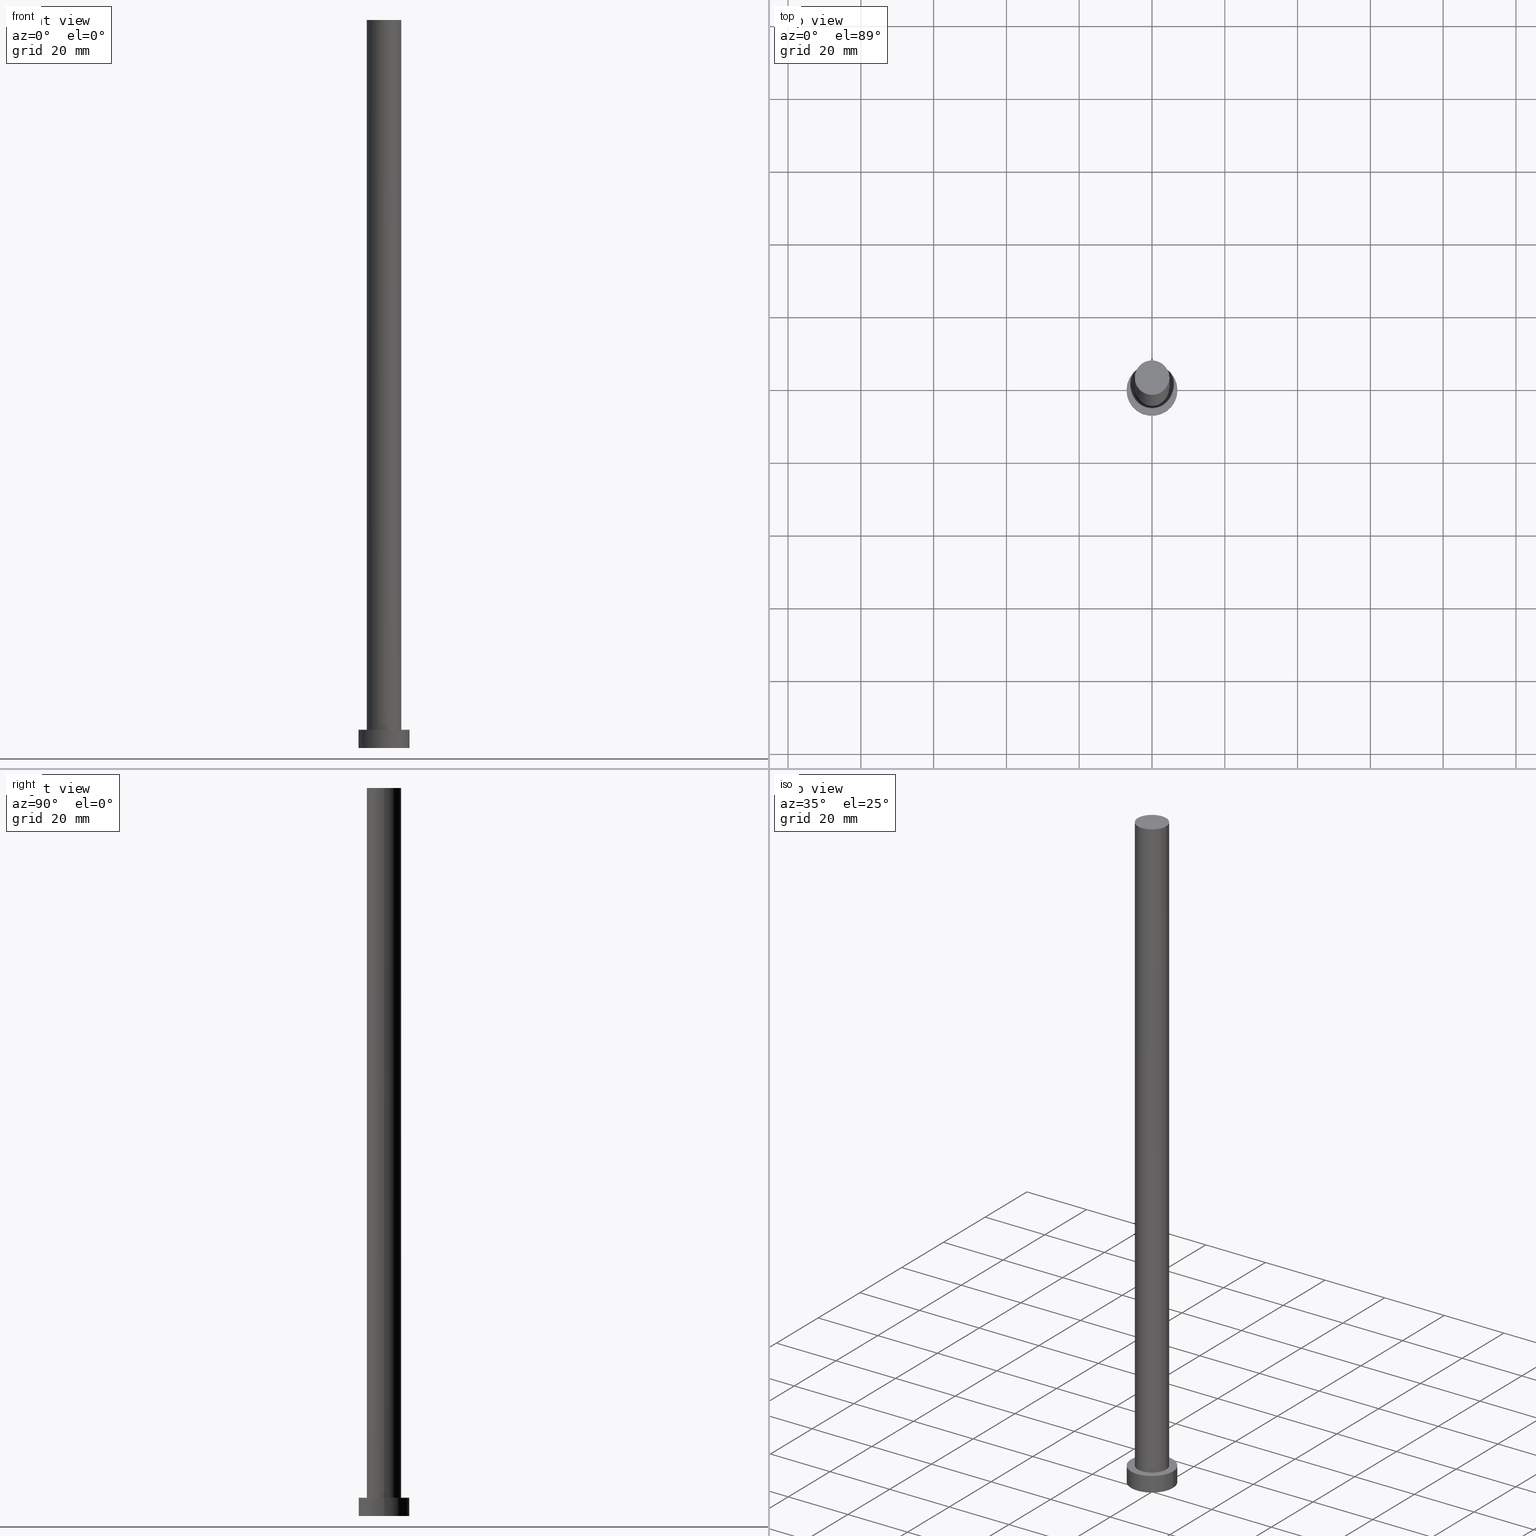
[diagram: canonical four-view strip — front | top / right | iso, engineering-drawing reading convention]
A machine part, canonical four-view strip (front | top / right | iso — engineering-drawing reading convention). The complete STEP part file that produces these views, byte-faithful:
ISO-10303-21;
HEADER;
FILE_DESCRIPTION (( 'STEP AP203' ),
    '1' );
FILE_NAME ('6ca9.STEP',
    '2026-02-06T12:37:42',
    ( '' ),
    ( '' ),
    'SwSTEP 2.0',
    'SolidWorks 2019',
    '' );
FILE_SCHEMA (( 'CONFIG_CONTROL_DESIGN' ));
ENDSEC;

DATA;
#1 = FACE_OUTER_BOUND ( 'NONE', #89, .T. ) ;
#2 = PERSON_AND_ORGANIZATION_ROLE ( 'design_supplier' ) ;
#3 = DIRECTION ( 'NONE',  ( -1.000000000000000000, 0.000000000000000000, 0.000000000000000000 ) ) ;
#4 = PERSON_AND_ORGANIZATION_ROLE ( 'creator' ) ;
#5 = PERSON_AND_ORGANIZATION ( #108, #65 ) ;
#6 = DIRECTION ( 'NONE',  ( -1.000000000000000000, 0.000000000000000000, 0.000000000000000000 ) ) ;
#7 = CARTESIAN_POINT ( 'NONE',  ( 0.000000000000000000, 0.000000000000000000, 5.000000000000000000 ) ) ;
#8 = APPROVAL_STATUS ( 'not_yet_approved' ) ;
#9 = AXIS2_PLACEMENT_3D ( 'NONE', #255, #77, #186 ) ;
#10 = CARTESIAN_POINT ( 'NONE',  ( 4.750000000000000888, 5.817072295949928412E-16, 200.0000000000000000 ) ) ;
#11 = DATE_AND_TIME ( #180, #14 ) ;
#12 = DESIGN_CONTEXT ( 'detailed design', #203, 'design' ) ;
#13 = ORIENTED_EDGE ( 'NONE', *, *, #185, .T. ) ;
#14 = LOCAL_TIME ( 13, 37, 42.00000000000000000, #100 ) ;
#15 = ORIENTED_EDGE ( 'NONE', *, *, #70, .T. ) ;
#16 = EDGE_CURVE ( 'NONE', #254, #148, #161, .T. ) ;
#17 = EDGE_LOOP ( 'NONE', ( #69, #90 ) ) ;
#18 = CARTESIAN_POINT ( 'NONE',  ( 0.000000000000000000, 0.000000000000000000, 200.0000000000000000 ) ) ;
#19 = ORIENTED_EDGE ( 'NONE', *, *, #230, .T. ) ;
#20 = DIRECTION ( 'NONE',  ( 1.000000000000000000, 0.000000000000000000, 0.000000000000000000 ) ) ;
#21 = DIRECTION ( 'NONE',  ( 1.000000000000000000, 0.000000000000000000, 0.000000000000000000 ) ) ;
#22 = COORDINATED_UNIVERSAL_TIME_OFFSET ( 1, 0, .AHEAD. ) ;
#23 = VECTOR ( 'NONE', #39, 1000.000000000000000 ) ;
#24 = DIRECTION ( 'NONE',  ( -0.000000000000000000, -0.000000000000000000, -1.000000000000000000 ) ) ;
#25 = PLANE ( 'NONE',  #253 ) ;
#26 = PLANE ( 'NONE',  #102 ) ;
#27 = APPLICATION_CONTEXT ( 'configuration controlled 3d designs of mechanical parts and assemblies' ) ;
#28 = CALENDAR_DATE ( 2026, 6, 2 ) ;
#29 = APPROVAL_PERSON_ORGANIZATION ( #226, #182, #218 ) ;
#30 = APPROVAL_ROLE ( '' ) ;
#31 = EDGE_CURVE ( 'NONE', #148, #254, #59, .T. ) ;
#32 = DIRECTION ( 'NONE',  ( -0.000000000000000000, -0.000000000000000000, -1.000000000000000000 ) ) ;
#33 =( GEOMETRIC_REPRESENTATION_CONTEXT ( 3 ) GLOBAL_UNCERTAINTY_ASSIGNED_CONTEXT ( ( #104 ) ) GLOBAL_UNIT_ASSIGNED_CONTEXT ( ( #85, #222, #242 ) ) REPRESENTATION_CONTEXT ( 'NONE', 'WORKASPACE' ) );
#34 = VERTEX_POINT ( 'NONE', #209 ) ;
#35 = DIRECTION ( 'NONE',  ( 0.000000000000000000, 0.000000000000000000, 1.000000000000000000 ) ) ;
#36 = PLANE ( 'NONE',  #245 ) ;
#37 = ORIENTED_EDGE ( 'NONE', *, *, #16, .F. ) ;
#38 = APPROVAL_PERSON_ORGANIZATION ( #200, #205, #30 ) ;
#39 = DIRECTION ( 'NONE',  ( -0.000000000000000000, -0.000000000000000000, -1.000000000000000000 ) ) ;
#40 = SECURITY_CLASSIFICATION_LEVEL ( 'unclassified' ) ;
#41 = DIRECTION ( 'NONE',  ( 1.000000000000000000, 0.000000000000000000, -0.000000000000000000 ) ) ;
#42 = PERSON_AND_ORGANIZATION ( #108, #65 ) ;
#43 = DIRECTION ( 'NONE',  ( 0.000000000000000000, 0.000000000000000000, 1.000000000000000000 ) ) ;
#44 = DATE_TIME_ROLE ( 'creation_date' ) ;
#45 = CALENDAR_DATE ( 2026, 6, 2 ) ;
#46 = CIRCLE ( 'NONE', #201, 7.000000000000000000 ) ;
#47 = DIRECTION ( 'NONE',  ( 1.000000000000000000, 0.000000000000000000, 0.000000000000000000 ) ) ;
#48 = CARTESIAN_POINT ( 'NONE',  ( 4.750000000000000888, 5.817072295949928412E-16, 5.000000000000000000 ) ) ;
#49 = PERSON_AND_ORGANIZATION_ROLE ( 'design_owner' ) ;
#50 = APPLICATION_PROTOCOL_DEFINITION ( 'international standard', 'config_control_design', 1994, #27 ) ;
#51 = DATE_AND_TIME ( #28, #141 ) ;
#52 = ORIENTED_EDGE ( 'NONE', *, *, #16, .T. ) ;
#53 = EDGE_CURVE ( 'NONE', #140, #57, #171, .T. ) ;
#54 = AXIS2_PLACEMENT_3D ( 'NONE', #134, #43, #97 ) ;
#55 = MANIFOLD_SOLID_BREP ( 'P�idat vysunut�m3', #93 ) ;
#56 = DIRECTION ( 'NONE',  ( -0.000000000000000000, -0.000000000000000000, -1.000000000000000000 ) ) ;
#57 = VERTEX_POINT ( 'NONE', #128 ) ;
#58 = ORIENTED_EDGE ( 'NONE', *, *, #164, .F. ) ;
#59 = CIRCLE ( 'NONE', #231, 7.000000000000000000 ) ;
#60 = CARTESIAN_POINT ( 'NONE',  ( 0.000000000000000000, 0.000000000000000000, 200.0000000000000000 ) ) ;
#61 = DIRECTION ( 'NONE',  ( 1.000000000000000000, 0.000000000000000000, 0.000000000000000000 ) ) ;
#62 = ADVANCED_FACE ( 'NONE', ( #72 ), #36, .T. ) ;
#63 = CARTESIAN_POINT ( 'NONE',  ( 0.000000000000000000, 0.000000000000000000, 5.000000000000000000 ) ) ;
#64 = PERSON_AND_ORGANIZATION_ROLE ( 'creator' ) ;
#65 = ORGANIZATION ( 'NEUR�EN�', 'NEUR�EN�', '' ) ;
#66 = COORDINATED_UNIVERSAL_TIME_OFFSET ( 1, 0, .AHEAD. ) ;
#67 = APPROVAL_PERSON_ORGANIZATION ( #42, #212, #150 ) ;
#68 = AXIS2_PLACEMENT_3D ( 'NONE', #152, #32, #246 ) ;
#69 = ORIENTED_EDGE ( 'NONE', *, *, #155, .F. ) ;
#70 = EDGE_CURVE ( 'NONE', #126, #254, #169, .T. ) ;
#71 = AXIS2_PLACEMENT_3D ( 'NONE', #63, #220, #6 ) ;
#72 = FACE_OUTER_BOUND ( 'NONE', #188, .T. ) ;
#73 = ORIENTED_EDGE ( 'NONE', *, *, #31, .T. ) ;
#74 = AXIS2_PLACEMENT_3D ( 'NONE', #167, #147, #20 ) ;
#75 = CARTESIAN_POINT ( 'NONE',  ( 7.000000000000000000, 8.572527594031473190E-16, 5.000000000000000000 ) ) ;
#76 = DIRECTION ( 'NONE',  ( 1.000000000000000000, 0.000000000000000000, -0.000000000000000000 ) ) ;
#77 = DIRECTION ( 'NONE',  ( 0.000000000000000000, 0.000000000000000000, 1.000000000000000000 ) ) ;
#78 = AXIS2_PLACEMENT_3D ( 'NONE', #166, #146, #168 ) ;
#79 = CARTESIAN_POINT ( 'NONE',  ( 0.000000000000000000, 0.000000000000000000, 0.000000000000000000 ) ) ;
#80 = CALENDAR_DATE ( 2026, 6, 2 ) ;
#81 = FACE_OUTER_BOUND ( 'NONE', #187, .T. ) ;
#82 = DIRECTION ( 'NONE',  ( -0.000000000000000000, -0.000000000000000000, -1.000000000000000000 ) ) ;
#83 = DIRECTION ( 'NONE',  ( 0.000000000000000000, 0.000000000000000000, 1.000000000000000000 ) ) ;
#84 = CARTESIAN_POINT ( 'NONE',  ( 0.000000000000000000, 0.000000000000000000, 5.000000000000000000 ) ) ;
#85 =( LENGTH_UNIT ( ) NAMED_UNIT ( * ) SI_UNIT ( .MILLI., .METRE. ) );
#86 = DIRECTION ( 'NONE',  ( 0.000000000000000000, 0.000000000000000000, 1.000000000000000000 ) ) ;
#87 = ORIENTED_EDGE ( 'NONE', *, *, #210, .F. ) ;
#88 = LINE ( 'NONE', #192, #122 ) ;
#89 = EDGE_LOOP ( 'NONE', ( #105, #107, #131, #236 ) ) ;
#90 = ORIENTED_EDGE ( 'NONE', *, *, #106, .F. ) ;
#91 = EDGE_CURVE ( 'NONE', #57, #125, #88, .T. ) ;
#92 = CARTESIAN_POINT ( 'NONE',  ( 0.000000000000000000, 0.000000000000000000, 5.000000000000000000 ) ) ;
#93 = CLOSED_SHELL ( 'NONE', ( #173, #252, #158, #229, #204, #124, #62 ) ) ;
#94 = APPROVAL_STATUS ( 'not_yet_approved' ) ;
#95 = FACE_OUTER_BOUND ( 'NONE', #139, .T. ) ;
#96 = DATE_TIME_ROLE ( 'classification_date' ) ;
#97 = DIRECTION ( 'NONE',  ( 1.000000000000000000, 0.000000000000000000, 0.000000000000000000 ) ) ;
#98 = MECHANICAL_CONTEXT ( 'NONE', #27, 'mechanical' ) ;
#99 = FACE_OUTER_BOUND ( 'NONE', #149, .T. ) ;
#100 = COORDINATED_UNIVERSAL_TIME_OFFSET ( 1, 0, .AHEAD. ) ;
#101 = PERSON_AND_ORGANIZATION ( #108, #65 ) ;
#102 = AXIS2_PLACEMENT_3D ( 'NONE', #79, #83, #41 ) ;
#103 = DIRECTION ( 'NONE',  ( -1.000000000000000000, 0.000000000000000000, 0.000000000000000000 ) ) ;
#104 = UNCERTAINTY_MEASURE_WITH_UNIT (LENGTH_MEASURE( 1.000000000000000082E-05 ), #85, 'distance_accuracy_value', 'NONE');
#105 = ORIENTED_EDGE ( 'NONE', *, *, #230, .F. ) ;
#106 = EDGE_CURVE ( 'NONE', #235, #125, #234, .T. ) ;
#107 = ORIENTED_EDGE ( 'NONE', *, *, #137, .F. ) ;
#108 = PERSON ( 'NEUR�EN�', 'NEUR�EN�', 'NEUR�EN�', ('NEUR�EN�'), ('NEUR�EN�'), ('NEUR�EN�') ) ;
#109 = CC_DESIGN_DATE_AND_TIME_ASSIGNMENT ( #111, #96, ( #238 ) ) ;
#110 = ORIENTED_EDGE ( 'NONE', *, *, #70, .F. ) ;
#111 = DATE_AND_TIME ( #80, #233 ) ;
#112 = CARTESIAN_POINT ( 'NONE',  ( -7.000000000000000000, 0.000000000000000000, 5.000000000000000000 ) ) ;
#113 = CC_DESIGN_SECURITY_CLASSIFICATION ( #238, ( #225 ) ) ;
#114 = FACE_BOUND ( 'NONE', #17, .T. ) ;
#115 = DIRECTION ( 'NONE',  ( 0.000000000000000000, 0.000000000000000000, 1.000000000000000000 ) ) ;
#116 = CARTESIAN_POINT ( 'NONE',  ( 0.000000000000000000, 0.000000000000000000, 200.0000000000000000 ) ) ;
#117 = COORDINATED_UNIVERSAL_TIME_OFFSET ( 1, 0, .AHEAD. ) ;
#118 = CALENDAR_DATE ( 2026, 6, 2 ) ;
#119 = ORIENTED_EDGE ( 'NONE', *, *, #137, .T. ) ;
#120 = EDGE_LOOP ( 'NONE', ( #237, #37 ) ) ;
#121 = AXIS2_PLACEMENT_3D ( 'NONE', #60, #216, #103 ) ;
#122 = VECTOR ( 'NONE', #56, 1000.000000000000000 ) ;
#123 = CARTESIAN_POINT ( 'NONE',  ( 7.000000000000000000, 8.572527594031473190E-16, 5.000000000000000000 ) ) ;
#124 = ADVANCED_FACE ( 'NONE', ( #1 ), #239, .T. ) ;
#125 = VERTEX_POINT ( 'NONE', #250 ) ;
#126 = VERTEX_POINT ( 'NONE', #123 ) ;
#127 = LOCAL_TIME ( 13, 37, 42.00000000000000000, #130 ) ;
#128 = CARTESIAN_POINT ( 'NONE',  ( -4.750000000000000888, 0.000000000000000000, 200.0000000000000000 ) ) ;
#129 = VECTOR ( 'NONE', #82, 1000.000000000000000 ) ;
#130 = COORDINATED_UNIVERSAL_TIME_OFFSET ( 1, 0, .AHEAD. ) ;
#131 = ORIENTED_EDGE ( 'NONE', *, *, #91, .T. ) ;
#132 = CARTESIAN_POINT ( 'NONE',  ( 4.750000000000000888, 5.817072295949928412E-16, 200.0000000000000000 ) ) ;
#133 = CC_DESIGN_APPROVAL ( #205, ( #225 ) ) ;
#134 = CARTESIAN_POINT ( 'NONE',  ( 0.000000000000000000, 0.000000000000000000, 5.000000000000000000 ) ) ;
#135 = APPROVAL_DATE_TIME ( #11, #205 ) ;
#136 = APPLICATION_PROTOCOL_DEFINITION ( 'international standard', 'config_control_design', 1994, #203 ) ;
#137 = EDGE_CURVE ( 'NONE', #57, #140, #227, .T. ) ;
#138 = AXIS2_PLACEMENT_3D ( 'NONE', #7, #241, #176 ) ;
#139 = EDGE_LOOP ( 'NONE', ( #143, #19, #163, #228 ) ) ;
#140 = VERTEX_POINT ( 'NONE', #132 ) ;
#141 = LOCAL_TIME ( 13, 37, 42.00000000000000000, #66 ) ;
#142 = CC_DESIGN_PERSON_AND_ORGANIZATION_ASSIGNMENT ( #5, #219, ( #238 ) ) ;
#143 = ORIENTED_EDGE ( 'NONE', *, *, #53, .F. ) ;
#144 = PRODUCT_RELATED_PRODUCT_CATEGORY ( 'detail', '', ( #206 ) ) ;
#145 = AXIS2_PLACEMENT_3D ( 'NONE', #208, #35, #21 ) ;
#146 = DIRECTION ( 'NONE',  ( 0.000000000000000000, 0.000000000000000000, 1.000000000000000000 ) ) ;
#147 = DIRECTION ( 'NONE',  ( 0.000000000000000000, 0.000000000000000000, 1.000000000000000000 ) ) ;
#148 = VERTEX_POINT ( 'NONE', #174 ) ;
#149 = EDGE_LOOP ( 'NONE', ( #58, #15, #52, #87 ) ) ;
#150 = APPROVAL_ROLE ( '' ) ;
#151 = LINE ( 'NONE', #112, #213 ) ;
#152 = CARTESIAN_POINT ( 'NONE',  ( 0.000000000000000000, 0.000000000000000000, 5.000000000000000000 ) ) ;
#153 = APPROVAL_DATE_TIME ( #240, #212 ) ;
#154 = CYLINDRICAL_SURFACE ( 'NONE', #71, 7.000000000000000000 ) ;
#155 = EDGE_CURVE ( 'NONE', #125, #235, #181, .T. ) ;
#156 = CC_DESIGN_APPROVAL ( #182, ( #183 ) ) ;
#157 = CYLINDRICAL_SURFACE ( 'NONE', #68, 7.000000000000000000 ) ;
#158 = ADVANCED_FACE ( 'NONE', ( #81 ), #154, .T. ) ;
#159 = CARTESIAN_POINT ( 'NONE',  ( 0.000000000000000000, 0.000000000000000000, 0.000000000000000000 ) ) ;
#160 = EDGE_LOOP ( 'NONE', ( #13, #190 ) ) ;
#161 = CIRCLE ( 'NONE', #78, 7.000000000000000000 ) ;
#162 = AXIS2_PLACEMENT_3D ( 'NONE', #159, #197, #61 ) ;
#163 = ORIENTED_EDGE ( 'NONE', *, *, #106, .T. ) ;
#164 = EDGE_CURVE ( 'NONE', #126, #34, #46, .T. ) ;
#165 = CARTESIAN_POINT ( 'NONE',  ( 0.000000000000000000, 0.000000000000000000, 0.000000000000000000 ) ) ;
#166 = CARTESIAN_POINT ( 'NONE',  ( 0.000000000000000000, 0.000000000000000000, 0.000000000000000000 ) ) ;
#167 = CARTESIAN_POINT ( 'NONE',  ( 0.000000000000000000, 0.000000000000000000, 5.000000000000000000 ) ) ;
#168 = DIRECTION ( 'NONE',  ( 1.000000000000000000, 0.000000000000000000, 0.000000000000000000 ) ) ;
#169 = LINE ( 'NONE', #75, #23 ) ;
#170 = CYLINDRICAL_SURFACE ( 'NONE', #221, 4.750000000000000888 ) ;
#171 = CIRCLE ( 'NONE', #9, 4.750000000000000888 ) ;
#172 = PERSON_AND_ORGANIZATION ( #108, #65 ) ;
#173 = ADVANCED_FACE ( 'NONE', ( #95 ), #170, .T. ) ;
#174 = CARTESIAN_POINT ( 'NONE',  ( -7.000000000000000000, 0.000000000000000000, 0.000000000000000000 ) ) ;
#175 = CC_DESIGN_DATE_AND_TIME_ASSIGNMENT ( #179, #44, ( #183 ) ) ;
#176 = DIRECTION ( 'NONE',  ( 1.000000000000000000, 0.000000000000000000, 0.000000000000000000 ) ) ;
#177 = APPROVAL_DATE_TIME ( #51, #182 ) ;
#178 = CC_DESIGN_APPROVAL ( #212, ( #238 ) ) ;
#179 = DATE_AND_TIME ( #118, #199 ) ;
#180 = CALENDAR_DATE ( 2026, 6, 2 ) ;
#181 = CIRCLE ( 'NONE', #54, 4.750000000000000888 ) ;
#182 = APPROVAL ( #224, 'NEUR�EN�' ) ;
#183 = PRODUCT_DEFINITION ( 'NEZN�M�', '', #225, #12 ) ;
#184 = PRODUCT_DEFINITION_SHAPE ( 'NONE', 'NONE',  #183 ) ;
#185 = EDGE_CURVE ( 'NONE', #34, #126, #189, .T. ) ;
#186 = DIRECTION ( 'NONE',  ( 1.000000000000000000, 0.000000000000000000, 0.000000000000000000 ) ) ;
#187 = EDGE_LOOP ( 'NONE', ( #110, #214, #211, #73 ) ) ;
#188 = EDGE_LOOP ( 'NONE', ( #119, #207 ) ) ;
#189 = CIRCLE ( 'NONE', #138, 7.000000000000000000 ) ;
#190 = ORIENTED_EDGE ( 'NONE', *, *, #164, .T. ) ;
#191 = CC_DESIGN_PERSON_AND_ORGANIZATION_ASSIGNMENT ( #202, #4, ( #225 ) ) ;
#192 = CARTESIAN_POINT ( 'NONE',  ( -4.750000000000000888, 0.000000000000000000, 200.0000000000000000 ) ) ;
#193 = FACE_OUTER_BOUND ( 'NONE', #160, .T. ) ;
#194 = DIRECTION ( 'NONE',  ( 1.000000000000000000, 0.000000000000000000, -0.000000000000000000 ) ) ;
#195 = CC_DESIGN_PERSON_AND_ORGANIZATION_ASSIGNMENT ( #172, #2, ( #225 ) ) ;
#196 = FACE_OUTER_BOUND ( 'NONE', #120, .T. ) ;
#197 = DIRECTION ( 'NONE',  ( 0.000000000000000000, 0.000000000000000000, 1.000000000000000000 ) ) ;
#198 = LINE ( 'NONE', #10, #129 ) ;
#199 = LOCAL_TIME ( 13, 37, 42.00000000000000000, #117 ) ;
#200 = PERSON_AND_ORGANIZATION ( #108, #65 ) ;
#201 = AXIS2_PLACEMENT_3D ( 'NONE', #92, #243, #47 ) ;
#202 = PERSON_AND_ORGANIZATION ( #108, #65 ) ;
#203 = APPLICATION_CONTEXT ( 'configuration controlled 3d designs of mechanical parts and assemblies' ) ;
#204 = ADVANCED_FACE ( 'NONE', ( #196 ), #26, .F. ) ;
#205 = APPROVAL ( #8, 'NEUR�EN�' ) ;
#206 = PRODUCT ( '6ca9', '6ca9', '', ( #98 ) ) ;
#207 = ORIENTED_EDGE ( 'NONE', *, *, #53, .T. ) ;
#208 = CARTESIAN_POINT ( 'NONE',  ( 0.000000000000000000, 0.000000000000000000, 200.0000000000000000 ) ) ;
#209 = CARTESIAN_POINT ( 'NONE',  ( -7.000000000000000000, 0.000000000000000000, 5.000000000000000000 ) ) ;
#210 = EDGE_CURVE ( 'NONE', #34, #148, #151, .T. ) ;
#211 = ORIENTED_EDGE ( 'NONE', *, *, #210, .T. ) ;
#212 = APPROVAL ( #94, 'NEUR�EN�' ) ;
#213 = VECTOR ( 'NONE', #217, 1000.000000000000000 ) ;
#214 = ORIENTED_EDGE ( 'NONE', *, *, #185, .F. ) ;
#215 = SHAPE_DEFINITION_REPRESENTATION ( #184, #223 ) ;
#216 = DIRECTION ( 'NONE',  ( -0.000000000000000000, -0.000000000000000000, -1.000000000000000000 ) ) ;
#217 = DIRECTION ( 'NONE',  ( -0.000000000000000000, -0.000000000000000000, -1.000000000000000000 ) ) ;
#218 = APPROVAL_ROLE ( '' ) ;
#219 = PERSON_AND_ORGANIZATION_ROLE ( 'classification_officer' ) ;
#220 = DIRECTION ( 'NONE',  ( -0.000000000000000000, -0.000000000000000000, -1.000000000000000000 ) ) ;
#221 = AXIS2_PLACEMENT_3D ( 'NONE', #116, #24, #3 ) ;
#222 =( NAMED_UNIT ( * ) PLANE_ANGLE_UNIT ( ) SI_UNIT ( $, .RADIAN. ) );
#223 = ADVANCED_BREP_SHAPE_REPRESENTATION ( '6ca9', ( #55, #162 ), #33 ) ;
#224 = APPROVAL_STATUS ( 'not_yet_approved' ) ;
#225 = PRODUCT_DEFINITION_FORMATION_WITH_SPECIFIED_SOURCE ( 'LIBOVOLN�', '', #206, .NOT_KNOWN. ) ;
#226 = PERSON_AND_ORGANIZATION ( #108, #65 ) ;
#227 = CIRCLE ( 'NONE', #145, 4.750000000000000888 ) ;
#228 = ORIENTED_EDGE ( 'NONE', *, *, #91, .F. ) ;
#229 = ADVANCED_FACE ( 'NONE', ( #114, #193 ), #25, .T. ) ;
#230 = EDGE_CURVE ( 'NONE', #140, #235, #198, .T. ) ;
#231 = AXIS2_PLACEMENT_3D ( 'NONE', #165, #86, #232 ) ;
#232 = DIRECTION ( 'NONE',  ( 1.000000000000000000, 0.000000000000000000, 0.000000000000000000 ) ) ;
#233 = LOCAL_TIME ( 13, 37, 42.00000000000000000, #22 ) ;
#234 = CIRCLE ( 'NONE', #74, 4.750000000000000888 ) ;
#235 = VERTEX_POINT ( 'NONE', #48 ) ;
#236 = ORIENTED_EDGE ( 'NONE', *, *, #155, .T. ) ;
#237 = ORIENTED_EDGE ( 'NONE', *, *, #31, .F. ) ;
#238 = SECURITY_CLASSIFICATION ( '', '', #40 ) ;
#239 = CYLINDRICAL_SURFACE ( 'NONE', #121, 4.750000000000000888 ) ;
#240 = DATE_AND_TIME ( #45, #127 ) ;
#241 = DIRECTION ( 'NONE',  ( 0.000000000000000000, 0.000000000000000000, 1.000000000000000000 ) ) ;
#242 =( NAMED_UNIT ( * ) SI_UNIT ( $, .STERADIAN. ) SOLID_ANGLE_UNIT ( ) );
#243 = DIRECTION ( 'NONE',  ( 0.000000000000000000, 0.000000000000000000, 1.000000000000000000 ) ) ;
#244 = PERSON_AND_ORGANIZATION ( #108, #65 ) ;
#245 = AXIS2_PLACEMENT_3D ( 'NONE', #18, #251, #76 ) ;
#246 = DIRECTION ( 'NONE',  ( -1.000000000000000000, 0.000000000000000000, 0.000000000000000000 ) ) ;
#247 = CC_DESIGN_PERSON_AND_ORGANIZATION_ASSIGNMENT ( #244, #49, ( #206 ) ) ;
#248 = CARTESIAN_POINT ( 'NONE',  ( 7.000000000000000000, 8.572527594031473190E-16, 0.000000000000000000 ) ) ;
#249 = CC_DESIGN_PERSON_AND_ORGANIZATION_ASSIGNMENT ( #101, #64, ( #183 ) ) ;
#250 = CARTESIAN_POINT ( 'NONE',  ( -4.750000000000000888, 0.000000000000000000, 5.000000000000000000 ) ) ;
#251 = DIRECTION ( 'NONE',  ( 0.000000000000000000, 0.000000000000000000, 1.000000000000000000 ) ) ;
#252 = ADVANCED_FACE ( 'NONE', ( #99 ), #157, .T. ) ;
#253 = AXIS2_PLACEMENT_3D ( 'NONE', #84, #115, #194 ) ;
#254 = VERTEX_POINT ( 'NONE', #248 ) ;
#255 = CARTESIAN_POINT ( 'NONE',  ( 0.000000000000000000, 0.000000000000000000, 200.0000000000000000 ) ) ;
ENDSEC;
END-ISO-10303-21;
